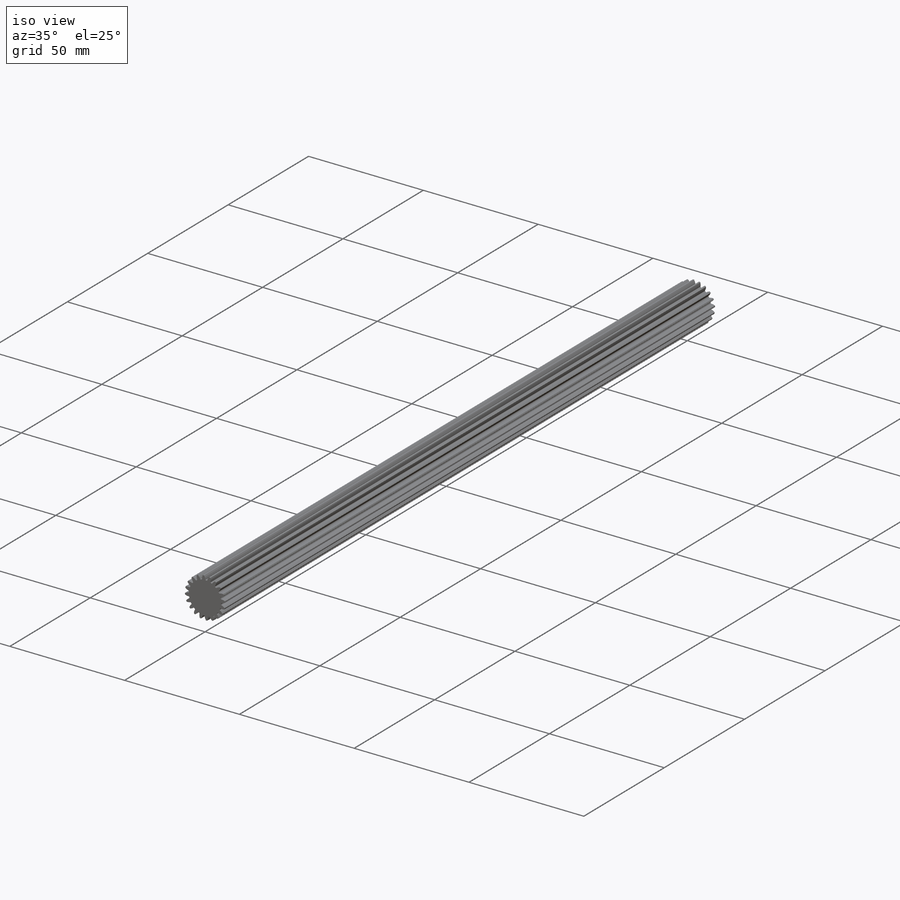
[diagram: iso view]
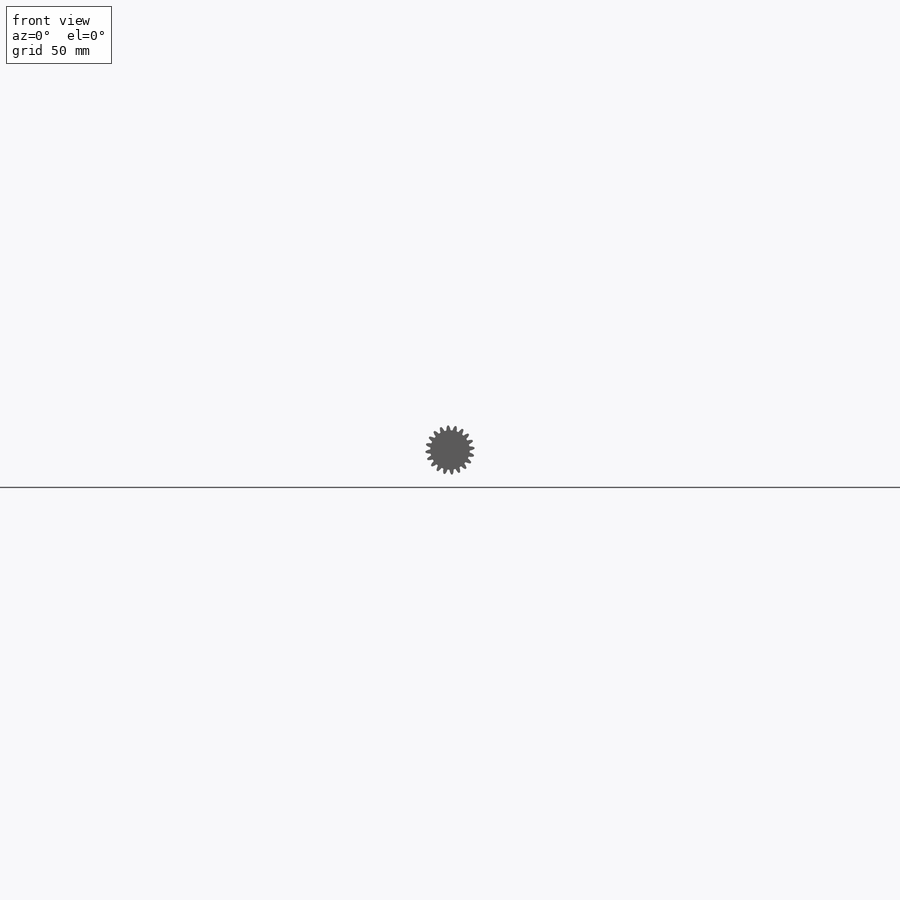
[diagram: front view]
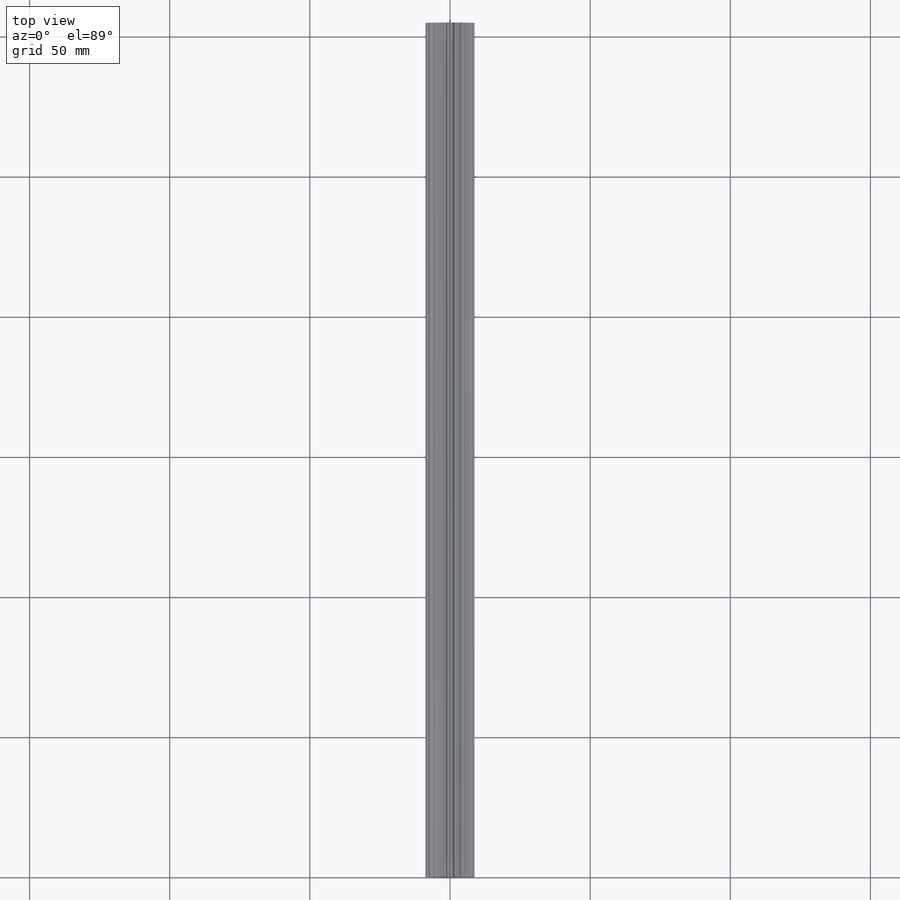
[diagram: top view]
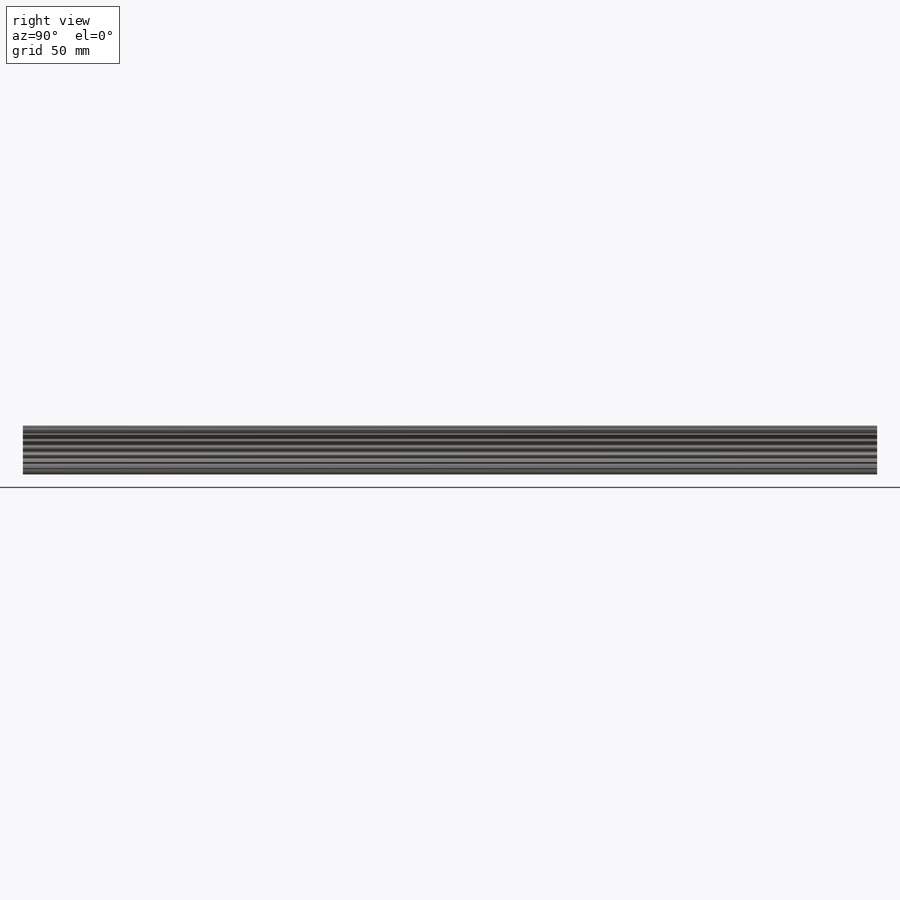
[diagram: right view]
SOLIDWORKS PART (.sldprt)
format: sldprt  version: not decoded by parser v0  size: 404,480 bytes
history: native  units: mm
features: sketch x4, material x1, extrude x1, cut_extrude x1, fillet x1, pattern_circular x1 (+15 scaffold rows collapsed)
feature tree (24):
  scaffold x15  (default folders/planes/origin — collapsed)
  material  "Material <not specified>"
  sketch  "Sketch1"  dims[c1.OD=17.526mm c1.Ptich Dia=9.525mm c1.Base Circle Dia=~12.211752mm c1.Root Circle Dia=~9.885098mm c1.D1=~9.885098mm c1.Root Dia=~14.038263mm c1.D2=10.6299mm c2.D1=10.6299mm c2.D2=~10.863262mm c2.D3=12.7mm c2.Pitch Diameter=15.875mm c3.D1=~1.79705mm c3.Number of Teeth=508.0mm c3.D2=~1.03505mm c4.D1=~0.918369mm c4.D2=~1.743869mm c4.D3=0.8255mm]
  extrude  "Boss-Extrude1"  Depth=304.8mm
  sketch  "Sketch3"  dims[c1.Base Circle=~12.295475mm c1.D1=~13.461173mm c1.Pressure Angle=14.5deg c2.D1=~12.294355mm c2.Pressure Angle=~24.272834deg c3.D1=~12.294355mm c3.Pressure Angle=20.0deg c4.D1=~1.589913mm c4.D2=~1.539271mm c5.D1=~2.714785mm c5.D2=~1.456638mm c5.D3=~6.108266mm c5.D4=~1.115631mm c5.D5=~1.900349mm c6.D2=~3.393481mm c6.D4=~0.814435mm]
  sketch  "Sketch4"  dims[c1.D1=~1.246822mm c1.D2=~0.964641mm c2.D1=~1.291411mm c2.D3=~5.314305mm c3.D3=~10.395603deg c4.D3=~1.244821mm c4.D2=~6.319423mm c5.D2=~174.802941deg c6.D2=~0.965361mm c6.D1=~1.246822mm c6.D3=~1.246822mm]
  cut_extrude  "Cut-Extrude1"  [1 undecoded]
  fillet  "Fillet1"  Radius=0.311706mm
  pattern_circular  "CirPattern1"  Count=20 Angle=360deg
  sketch  "Pitch Dia"
decode coverage: 6 of 8 modeling features carry decoded parameters
note: ~ marks probable driven/reference dimensions
note: 1 parameter value undecoded
note: suppression state not decoded; provenance and decode notes live in map.json
